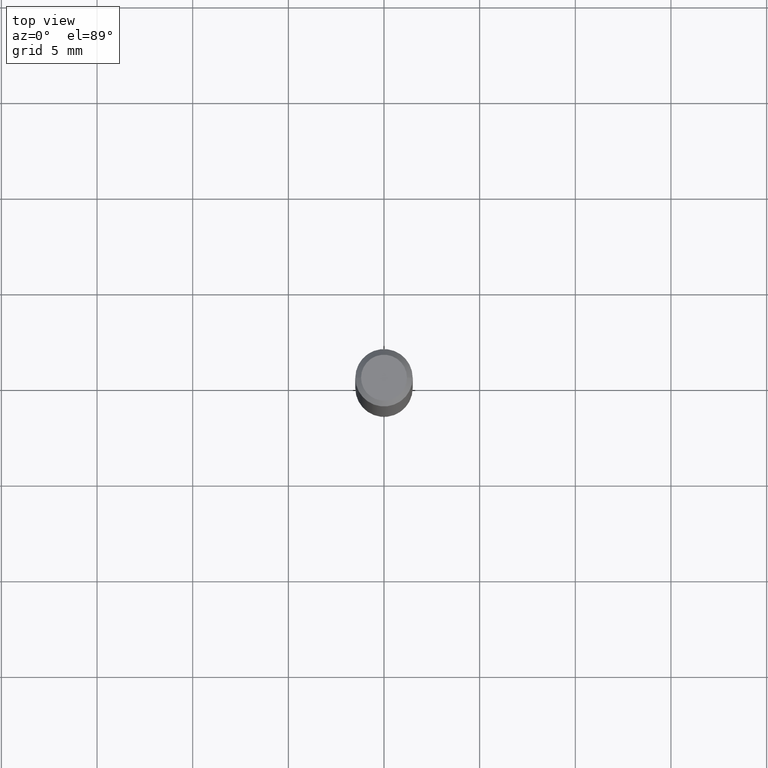
[diagram: clean part render]
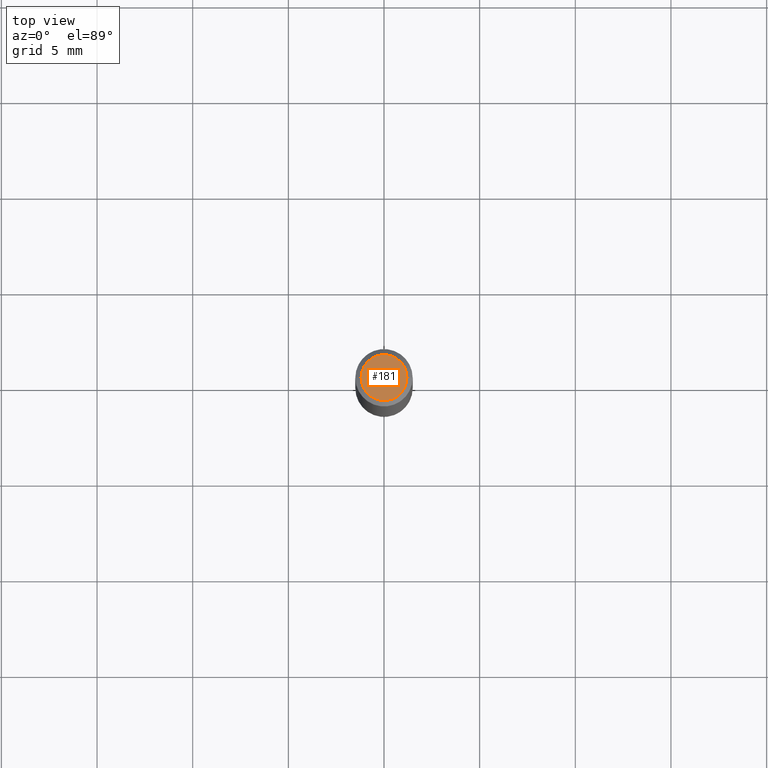
[diagram: same view with one face highlighted and labeled with its STEP entity id]
A machine part, top view. The second image highlights one B-rep face of the part: STEP entity #181.
In plain terms, the highlighted planar face has unit normal (0, -0, -1).
Its self-contained STEP definition (entity closure, byte-faithful):
#6 = CARTESIAN_POINT ( 'NONE',  ( -0.04724000000000000421, 3.504923541997677355E-16, -3.380025165670481712E-19 ) ) ;
#8 = CARTESIAN_POINT ( 'NONE',  ( 8.265746106709734507E-48, -1.180129479067563789E-33, -3.380025165646692144E-19 ) ) ;
#41 = DIRECTION ( 'NONE',  ( -2.445468806185136597E-29, 3.491481338843145583E-15, 1.000000000000000000 ) ) ;
#50 = DIRECTION ( 'NONE',  ( -1.000000000000000000, 6.982962677686265922E-15, -4.876176775795935793E-29 ) ) ;
#89 = FACE_OUTER_BOUND ( 'NONE', #312, .T. ) ;
#92 = ORIENTED_EDGE ( 'NONE', *, *, #473, .T. ) ;
#123 = VERTEX_POINT ( 'NONE', #441 ) ;
#126 = DIRECTION ( 'NONE',  ( 1.000000000000000000, -6.982962677686266711E-15, 4.876185090822587894E-29 ) ) ;
#131 = DIRECTION ( 'NONE',  ( 1.000000000000000000, -6.982962677686266711E-15, 4.876185090822587894E-29 ) ) ;
#141 = CIRCLE ( 'NONE', #292, 0.04724000000000000421 ) ;
#163 = CARTESIAN_POINT ( 'NONE',  ( 4.132873053354867254E-48, -5.900647395337818946E-34, -1.690012582823346072E-19 ) ) ;
#172 = VERTEX_POINT ( 'NONE', #6 ) ;
#181 = ADVANCED_FACE ( 'NONE', ( #89 ), #381, .F. ) ;
#193 = ORIENTED_EDGE ( 'NONE', *, *, #376, .T. ) ;
#203 = DIRECTION ( 'NONE',  ( -2.445468806185136597E-29, 3.491481338843145583E-15, 1.000000000000000000 ) ) ;
#292 = AXIS2_PLACEMENT_3D ( 'NONE', #358, #41, #131 ) ;
#312 = EDGE_LOOP ( 'NONE', ( #193, #92 ) ) ;
#316 = AXIS2_PLACEMENT_3D ( 'NONE', #8, #203, #126 ) ;
#358 = CARTESIAN_POINT ( 'NONE',  ( 8.265746106709734507E-48, -1.180129479067563789E-33, -3.380025165646692144E-19 ) ) ;
#376 = EDGE_CURVE ( 'NONE', #172, #123, #141, .T. ) ;
#381 = PLANE ( 'NONE',  #446 ) ;
#395 = DIRECTION ( 'NONE',  ( 2.438088387897960049E-29, -3.491481338843145188E-15, -1.000000000000000000 ) ) ;
#441 = CARTESIAN_POINT ( 'NONE',  ( 0.04724000000000000421, -3.852183633974369345E-16, -3.380025165621689721E-19 ) ) ;
#446 = AXIS2_PLACEMENT_3D ( 'NONE', #163, #395, #50 ) ;
#447 = CIRCLE ( 'NONE', #316, 0.04724000000000000421 ) ;
#473 = EDGE_CURVE ( 'NONE', #123, #172, #447, .T. ) ;